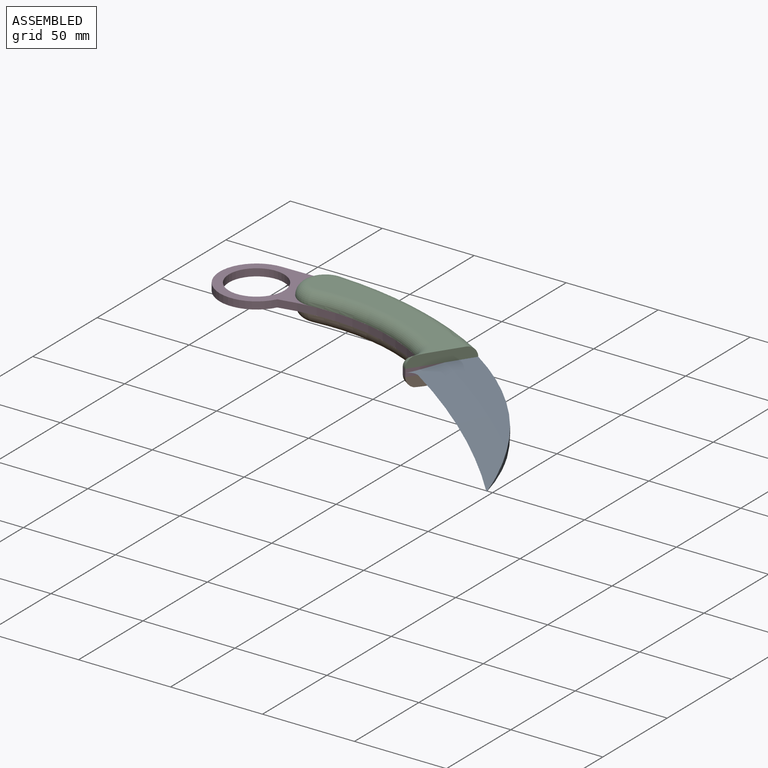
[diagram: assembled view]
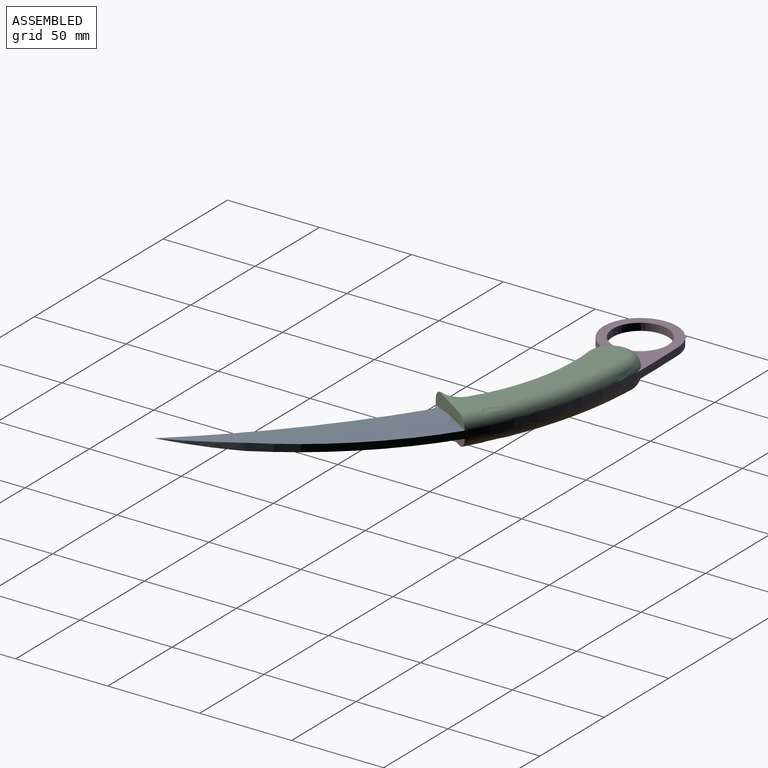
[diagram: assembled view, second angle]
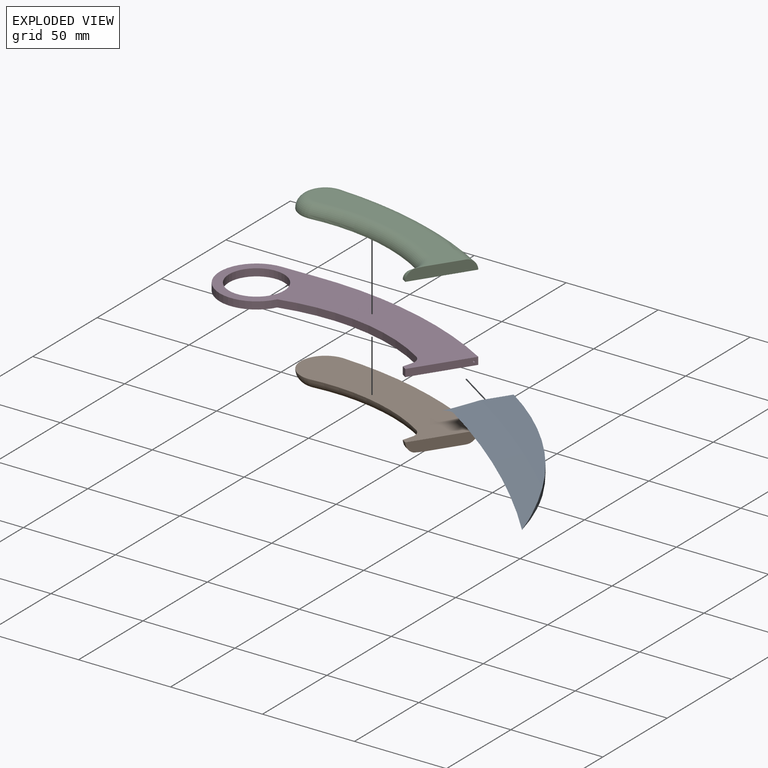
[diagram: exploded view]
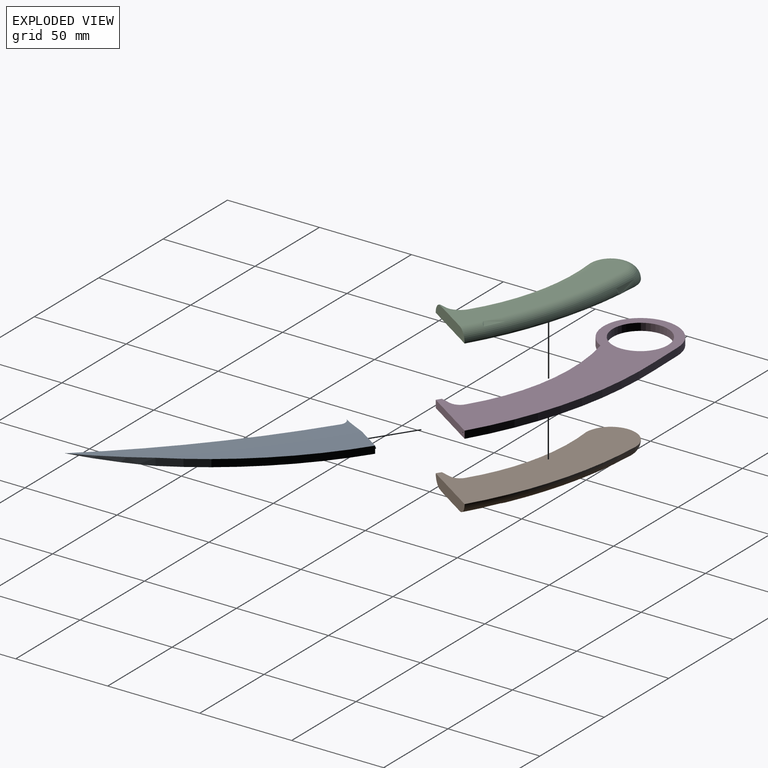
[diagram: exploded view, second angle]
ASSEMBLY  parts=4 mates=3
PART A: 10 faces, bbox 149x47.5x4 mm
  f0: cylinder r=201.64mm len=130mm, axis (0,0,-1), area 481.7mm2, adj f1,f2,f3,f4,f5
  f1: plane 35x4mm, normal (-1,0,0), area 95.7mm2, adj f0,f2,f3,f6,f7,f8
  f2: plane 95.6x24.1mm, normal (0,0,1), area 994.1mm2, adj f0,f1,f5,f7
  f3: plane 95.6x24.1mm, normal (0,0,-1), area 994.1mm2, adj f0,f1,f4,f6
  f4: cone r=471.74mm half-angle=82.4deg, axis (0,0,-1), area 1674.4mm2, adj f0,f3,f5,f6
  f5: cone r=486.74mm half-angle=82.4deg, axis (0,0,1), area 1674.4mm2, adj f0,f2,f4,f7
  f6: cone r=19.5mm half-angle=82.4deg, axis (0,0,-1), area 71.7mm2, adj f1,f3,f4,f7
  f7: cone r=4.5mm half-angle=82.4deg, axis (0,0,1), area 71.7mm2, adj f1,f2,f5,f6
  f8: cylinder r=0.5mm len=1mm, axis (1,0,0), area 3.1mm2, adj f1,f9
  f9: plane 1x1mm, normal (-1,0,0), area 0.8mm2, adj f8
PART B: 10 faces, bbox 116.1x73.5x10.3 mm
  f0: plane 29.25x19.29mm, normal (0.83,-0.55,0), area 194.1mm2, adj f1,f2,f3,f4,f8,f9
  f1: plane 97.24x43.01mm, normal (0,0,-1), area 1226.3mm2, adj f0,f3,f6,f7,f8
  f2: plane 106.54x56.92mm, normal (0,0,1), area 2543.3mm2, adj f0,f3,f4,f5,f6,f7,f8,f9
  f3: torus R=195.11mm, axis (0,0,1), area 912mm2, adj f0,f1,f2,f5
  f4: cylinder r=6mm len=5.67mm, axis (-0.83,0.55,0), area 14.2mm2, adj f0,f2,f9
  f5: sphere r=6mm, area 2.2mm2, adj f2,f3,f6
  f6: torus R=7.45mm, axis (0,0,1), area 330.9mm2, adj f1,f2,f5,f7
  f7: torus R=116mm, axis (0,0,1), area 705.3mm2, adj f1,f2,f6,f8
  f8: torus R=12mm, axis (0,0,1), area 97mm2, adj f0,f1,f2,f7,f9
  f9: cylinder r=6mm len=6.63mm, axis (0.27,0.96,0), area 34.5mm2, adj f0,f2,f4,f8
PART C: 10 faces, bbox 116.1x73.5x10.3 mm
  f0: plane 29.25x19.29mm, normal (0.83,-0.55,0), area 194.1mm2, adj f1,f2,f3,f4,f8,f9
  f1: plane 97.24x43.01mm, normal (0,0,1), area 1226.3mm2, adj f0,f3,f6,f7,f8
  f2: plane 106.54x56.92mm, normal (0,0,-1), area 2543.3mm2, adj f0,f3,f4,f5,f6,f7,f8,f9
  f3: torus R=195.11mm, axis (0,0,1), area 912mm2, adj f0,f1,f2,f5
  f4: cylinder r=6mm len=5.67mm, axis (-0.83,0.55,0), area 14.2mm2, adj f0,f2,f9
  f5: sphere r=6mm, area 2.2mm2, adj f2,f3,f6
  f6: torus R=7.45mm, axis (0,0,1), area 330.9mm2, adj f1,f2,f5,f7
  f7: torus R=116mm, axis (0,0,1), area 705.3mm2, adj f1,f2,f6,f8
  f8: torus R=12mm, axis (0,0,1), area 97mm2, adj f0,f1,f2,f7,f9
  f9: cylinder r=6mm len=6.63mm, axis (0.27,0.96,0), area 34.5mm2, adj f0,f2,f4,f8
PART D: 13 faces, bbox 145.8x57.1x4 mm
  f0: plane 29.22x19.27mm, normal (0.83,-0.55,0), area 139.2mm2, adj f1,f7,f9,f10,f12
  f1: cylinder r=201.11mm len=108.11mm, axis (0,0,-1), area 452.5mm2, adj f0,f2,f9,f10
  f2: cylinder r=884.72mm len=17.68mm, axis (0,0,-1), area 70.8mm2, adj f1,f3,f9,f10
  f3: cylinder r=20mm len=40mm, axis (0,0,-1), area 338.3mm2, adj f2,f4,f9,f10
  f4: cylinder r=110mm len=85.24mm, axis (0,0,-1), area 354.9mm2, adj f3,f5,f9,f10
  f5: cylinder r=6mm len=6.67mm, axis (0,0,-1), area 30.7mm2, adj f4,f6,f9,f10
  f6: plane 5.33x4mm, normal (-0.96,0.27,0), area 22.1mm2, adj f5,f7,f9,f10
  f7: plane 4x2.45mm, normal (-0.55,-0.83,0), area 11.7mm2, adj f0,f6,f9,f10
  f8: cylinder r=15mm len=30mm, axis (0,0,-1), area 377mm2, adj f9,f10
  f9: plane 145.79x57.13mm, normal (0,0,1), area 3259.6mm2, adj f0,f1,f2,f3,f4,f5,f6,f7
  f10: plane 145.79x57.13mm, normal (0,0,-1), area 3259.6mm2, adj f0,f1,f2,f3,f4,f5,f6,f7
  f11: cone r=0mm half-angle=59deg, axis (0.83,-0.55,0), area 0.9mm2, adj f12
  f12: cylinder r=0.5mm len=1.39mm, axis (0.83,-0.55,0), area 3.1mm2, adj f0,f11
PLACE A rot(axis=(0,0,-1),33.4deg) t=(350.16,103.4,-45.8)mm
PLACE B t=(335.43,123.23,-45.8)mm
PLACE C t=(309.3,128.49,-41.8)mm
PLACE D t=(243.64,151.1,-45.8)mm
MATE fastened D.f10 <-> B.f2  axis (0,0,-1) through (359.79,118.01,-45.8)mm
MATE fastened A.f8 <-> D.f12  axis (-0.83,0.55,0) through (367.49,131.5,-43.8)mm
MATE fastened C.f2 <-> D.f9  axis (0,0,-1) through (359.79,118.01,-41.8)mm
